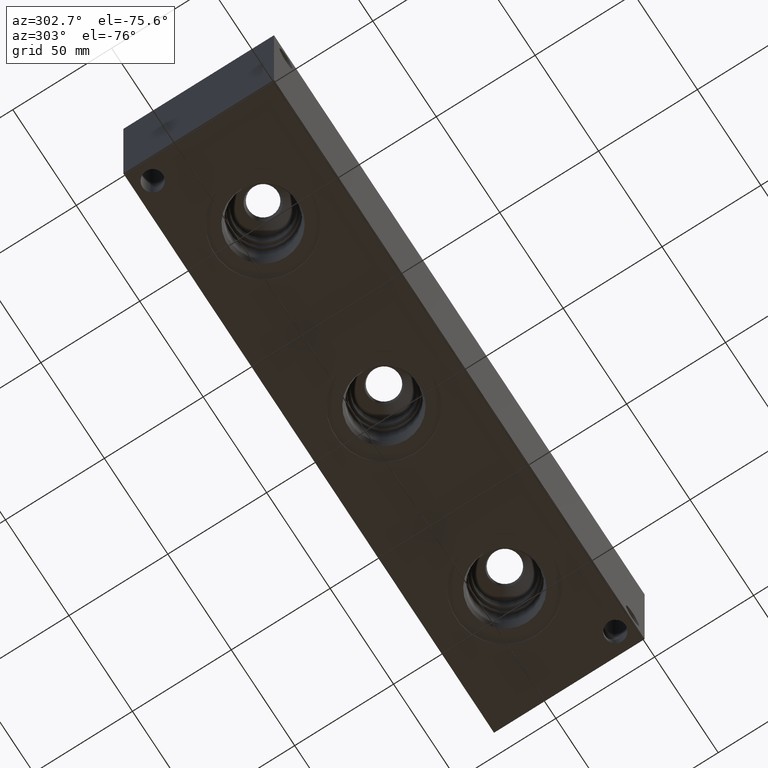
[diagram: clean part render]
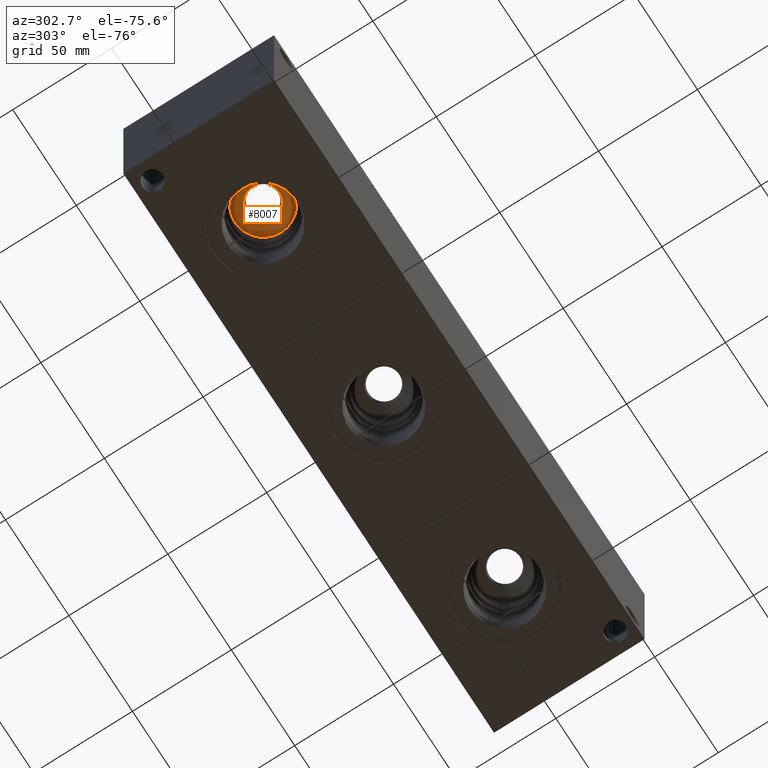
[diagram: same view with one face highlighted and labeled with its STEP entity id]
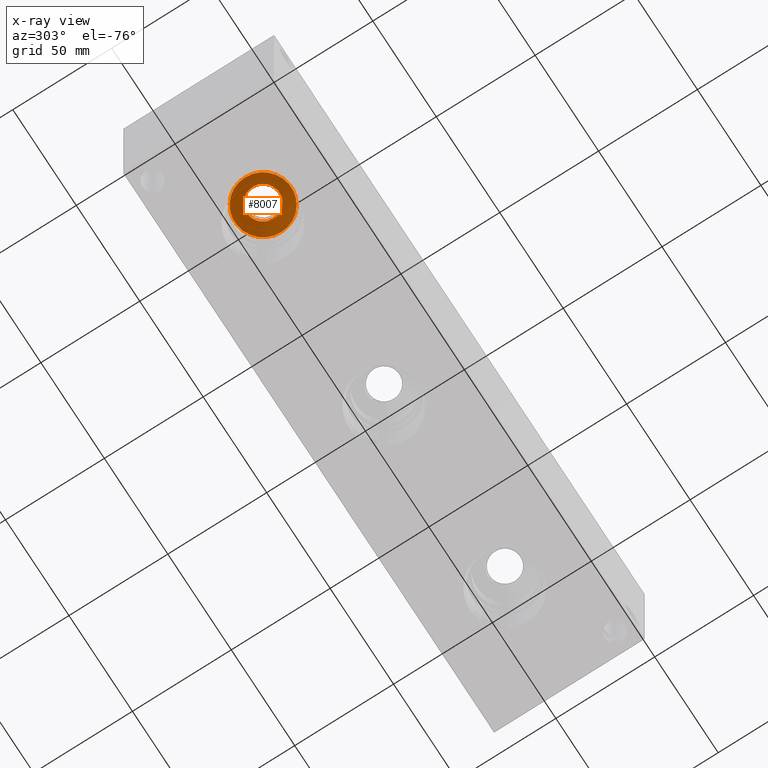
[diagram: x-ray of the same camera — body ghosted, the highlighted face saturated]
A machine part, auxiliary view. The second image highlights one B-rep face of the part: STEP entity #8007.
The next image is the same camera in x-ray: the body ghosted, the highlighted face saturated — about 7% of this face is hidden behind the body in this view.
In plain terms, the highlighted conical surface has half-angle 60 deg.
Its self-contained STEP definition (entity closure, byte-faithful):
#66=CONICAL_SURFACE('',#8341,7.14375,1.0471975511966);
#113=CIRCLE('',#8342,14.2875);
#114=CIRCLE('',#8343,8.29239320143379);
#115=CIRCLE('',#8344,14.2875);
#952=FACE_OUTER_BOUND('',#1402,.T.);
#1402=EDGE_LOOP('',(#6686,#6687,#6688,#6689,#6690));
#2186=LINE('',#13533,#2939);
#2939=VECTOR('',#9697,7.14375);
#3632=VERTEX_POINT('',#13529);
#3633=VERTEX_POINT('',#13530);
#3634=VERTEX_POINT('',#13532);
#4673=EDGE_CURVE('',#3632,#3633,#113,.T.);
#4674=EDGE_CURVE('',#3633,#3634,#2186,.T.);
#4675=EDGE_CURVE('',#3634,#3634,#114,.T.);
#4676=EDGE_CURVE('',#3633,#3632,#115,.T.);
#6686=ORIENTED_EDGE('',*,*,#4673,.T.);
#6687=ORIENTED_EDGE('',*,*,#4674,.T.);
#6688=ORIENTED_EDGE('',*,*,#4675,.F.);
#6689=ORIENTED_EDGE('',*,*,#4674,.F.);
#6690=ORIENTED_EDGE('',*,*,#4676,.T.);
#8007=ADVANCED_FACE('',(#952),#66,.F.);
#8341=AXIS2_PLACEMENT_3D('',#13528,#9693,#9694);
#8342=AXIS2_PLACEMENT_3D('',#13531,#9695,#9696);
#8343=AXIS2_PLACEMENT_3D('',#13534,#9698,#9699);
#8344=AXIS2_PLACEMENT_3D('',#13535,#9700,#9701);
#9693=DIRECTION('center_axis',(0.,0.,-1.));
#9694=DIRECTION('ref_axis',(1.,0.,0.));
#9695=DIRECTION('center_axis',(0.,0.,-1.));
#9696=DIRECTION('ref_axis',(1.,0.,0.));
#9697=DIRECTION('',(0.866025403784438,-1.06057523872491E-16,0.5));
#9698=DIRECTION('center_axis',(0.,0.,-1.));
#9699=DIRECTION('ref_axis',(1.,0.,0.));
#9700=DIRECTION('center_axis',(0.,0.,-1.));
#9701=DIRECTION('ref_axis',(1.,0.,0.));
#13528=CARTESIAN_POINT('Origin',(50.8,38.1,36.7715359855234));
#13529=CARTESIAN_POINT('',(65.0875,38.1,32.64709));
#13530=CARTESIAN_POINT('',(36.5125,38.1,32.64709));
#13531=CARTESIAN_POINT('Origin',(50.8,38.1,32.64709));
#13532=CARTESIAN_POINT('',(42.5076067985662,38.1,36.1083665239728));
#13533=CARTESIAN_POINT('',(43.65625,38.1,36.7715359855234));
#13534=CARTESIAN_POINT('Origin',(50.8,38.1,36.1083665239728));
#13535=CARTESIAN_POINT('Origin',(50.8,38.1,32.64709));